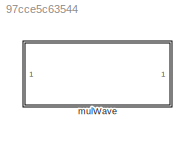
MODEL slx_97cce5c63544
KIND model
CONFIG AbsTol = auto
CONFIG EnableMultiTasking = off
CONFIG FixedStep = auto
CONFIG MaxStep = auto
CONFIG MinStep = auto
CONFIG RelTol = 1e-3
CONFIG SampleTimeConstraint = Unconstrained
CONFIG SolverName = VariableStepAuto
CONFIG StartTime = 0.0
CONFIG StopTime = 10.0
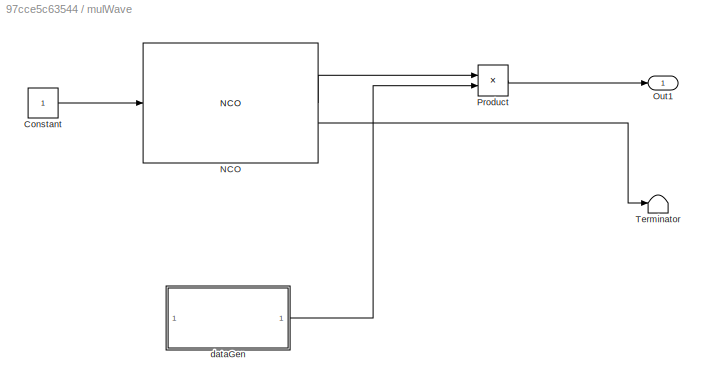
BLOCK [SubSystem] mulWave
BLOCK [Constant] mulWave/Constant
  OutDataTypeStr = boolean
  SampleTime = 1/fs
BLOCK [Reference] mulWave/NCO  REF=dsphdlsigops2/NCO
  LibrarySourceBlock = dsphdlsrcs2/NCO
  SourceBlock = dsphdlsigops2/NCO
  SourceType = NCO
BLOCK [Outport] mulWave/Out1
BLOCK [Product] mulWave/Product
BLOCK [Terminator] mulWave/Terminator
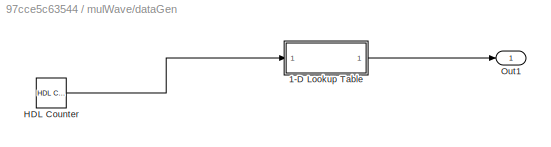
BLOCK [SubSystem] mulWave/dataGen
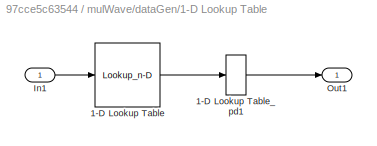
BLOCK [SubSystem] mulWave/dataGen/1-D Lookup Table
BLOCK [Lookup_n-D] mulWave/dataGen/1-D Lookup Table/1-D Lookup Table
  BreakpointsForDimension1 = [0:2*num-1]
  BreakpointsForDimension1FirstPoint = 10
  BreakpointsForDimension1Spacing = 12
  BreakpointsForDimension2FirstPoint = 10
  BreakpointsForDimension2Spacing = 12
  IndexSearchMethod = Evenly spaced points
  InputPortMap = u0
  InternalRulePriority = Speed
  InterpMethod = Flat
  LookupTableObject = ''
  NumberOfTableDimensions = 1
  OutDataTypeStr = int8
  RndMeth = Simplest
  Table = inputData
BLOCK [Delay] mulWave/dataGen/1-D Lookup Table/1-D Lookup Table_pd1
  DelayLength = 1
  InputPortMap = u0
BLOCK [Inport] mulWave/dataGen/1-D Lookup Table/In1
BLOCK [Outport] mulWave/dataGen/1-D Lookup Table/Out1
BLOCK [Reference] mulWave/dataGen/HDL Counter  REF=hdlsllib/Sources/HDL Counter
  SourceBlock = hdlsllib/Sources/HDL Counter
  SourceType = HDL Counter
BLOCK [Outport] mulWave/dataGen/Out1
  OutDataTypeStr = int8
  SampleTime = 1e-08
LINE mulWave/Constant:1 -> mulWave/NCO:1
LINE mulWave/NCO:1 -> mulWave/Product:1
LINE mulWave/NCO:2 -> mulWave/Terminator:1
LINE mulWave/Product:1 -> mulWave/Out1:1
LINE mulWave/dataGen/1-D Lookup Table/1-D Lookup Table:1 -> mulWave/dataGen/1-D Lookup Table/1-D Lookup Table_pd1:1
LINE mulWave/dataGen/1-D Lookup Table/1-D Lookup Table_pd1:1 -> mulWave/dataGen/1-D Lookup Table/Out1:1
LINE mulWave/dataGen/1-D Lookup Table/In1:1 -> mulWave/dataGen/1-D Lookup Table/1-D Lookup Table:1
LINE mulWave/dataGen/1-D Lookup Table:1 -> mulWave/dataGen/Out1:1
LINE mulWave/dataGen/HDL Counter:1 -> mulWave/dataGen/1-D Lookup Table:1
LINE mulWave/dataGen:1 -> mulWave/Product:2
